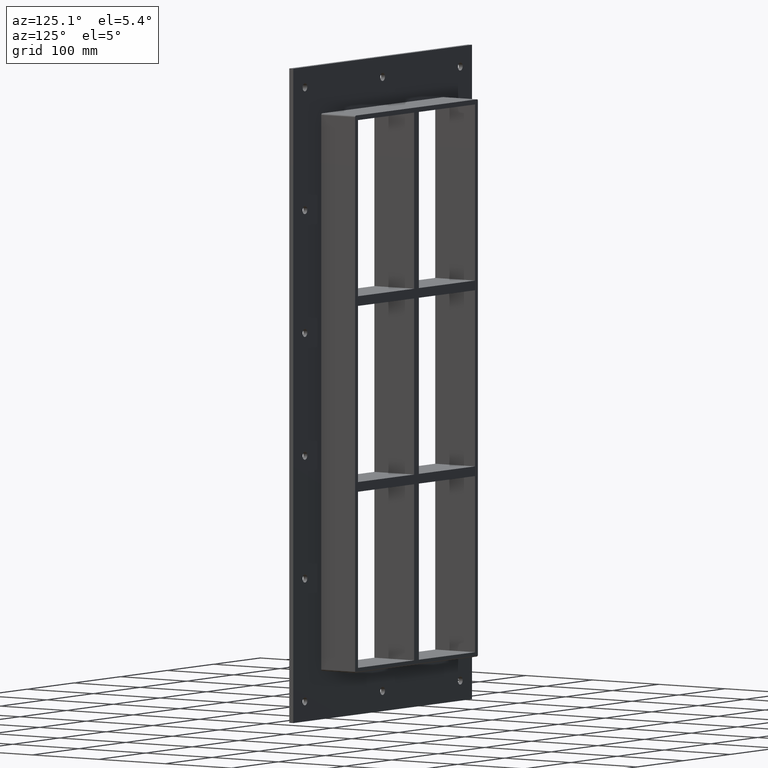
[diagram: clean part render]
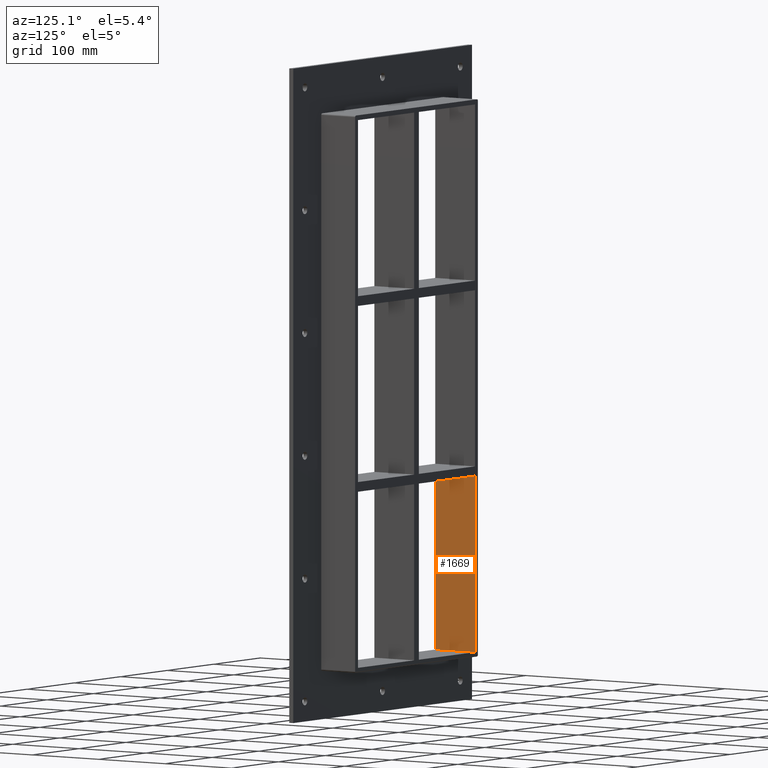
[diagram: same view with one face highlighted and labeled with its STEP entity id]
A machine part, auxiliary view. The second image highlights one B-rep face of the part: STEP entity #1669.
In plain terms, the highlighted planar face has unit normal (-1, 0, 0).
Its self-contained STEP definition (entity closure, byte-faithful):
#861=CARTESIAN_POINT('',(-125.49999999999875,-3.0,-121.0000000000116));
#862=VERTEX_POINT('',#861);
#869=CARTESIAN_POINT('',(-125.49999999999875,57.0,-121.0000000000116));
#870=VERTEX_POINT('',#869);
#871=CARTESIAN_POINT('',(-125.5,57.000000000000007,-121.00000000001162));
#872=DIRECTION('',(0.0,-1.0,0.0));
#873=VECTOR('',#872,60.000000000000007);
#874=LINE('',#871,#873);
#875=EDGE_CURVE('',#870,#862,#874,.T.);
#1097=CARTESIAN_POINT('',(-125.5,57.0,-339.00000000000006));
#1098=VERTEX_POINT('',#1097);
#1099=CARTESIAN_POINT('',(-125.5,57.0,-121.0000000000116));
#1100=DIRECTION('',(0.0,0.0,-1.0));
#1101=VECTOR('',#1100,217.99999999998846);
#1102=LINE('',#1099,#1101);
#1103=EDGE_CURVE('',#870,#1098,#1102,.T.);
#1213=CARTESIAN_POINT('',(-125.5,-3.0,-339.00000000000006));
#1214=VERTEX_POINT('',#1213);
#1215=CARTESIAN_POINT('',(-125.5,-3.0,-339.00000000000006));
#1216=DIRECTION('',(0.0,1.0,0.0));
#1217=VECTOR('',#1216,60.0);
#1218=LINE('',#1215,#1217);
#1219=EDGE_CURVE('',#1214,#1098,#1218,.T.);
#1653=CARTESIAN_POINT('',(-125.5,0.0,-339.00000000000006));
#1654=DIRECTION('',(-1.0,0.0,0.0));
#1655=DIRECTION('',(0.0,0.0,1.0));
#1656=AXIS2_PLACEMENT_3D('',#1653,#1654,#1655);
#1657=PLANE('',#1656);
#1658=ORIENTED_EDGE('',*,*,#875,.T.);
#1659=CARTESIAN_POINT('',(-125.5,-3.0,-339.00000000000006));
#1660=DIRECTION('',(0.0,0.0,1.0));
#1661=VECTOR('',#1660,217.99999999998846);
#1662=LINE('',#1659,#1661);
#1663=EDGE_CURVE('',#1214,#862,#1662,.T.);
#1664=ORIENTED_EDGE('',*,*,#1663,.F.);
#1665=ORIENTED_EDGE('',*,*,#1219,.T.);
#1666=ORIENTED_EDGE('',*,*,#1103,.F.);
#1667=EDGE_LOOP('',(#1658,#1664,#1665,#1666));
#1668=FACE_OUTER_BOUND('',#1667,.T.);
#1669=ADVANCED_FACE('',(#1668),#1657,.F.);